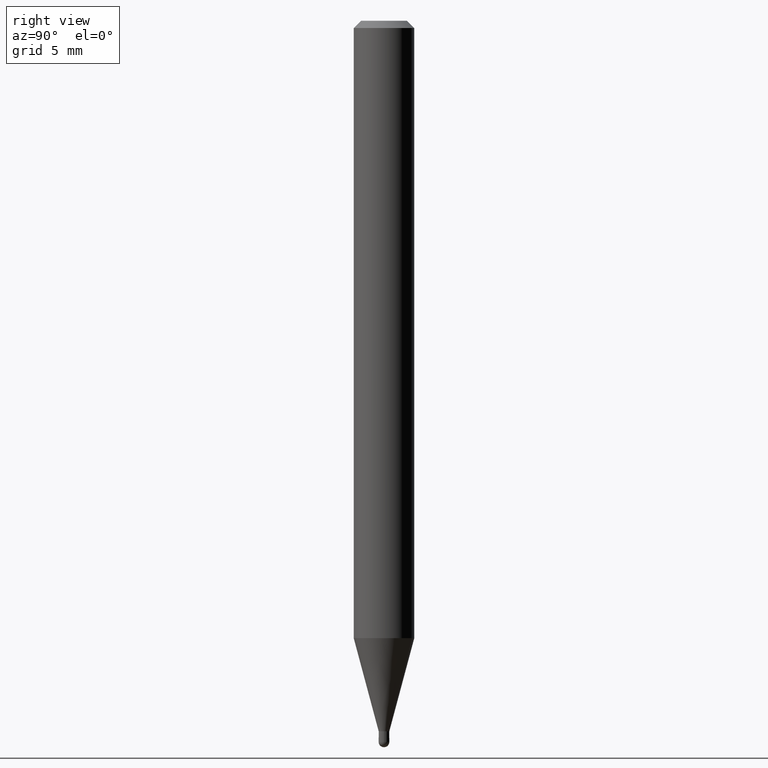
[diagram: clean part render]
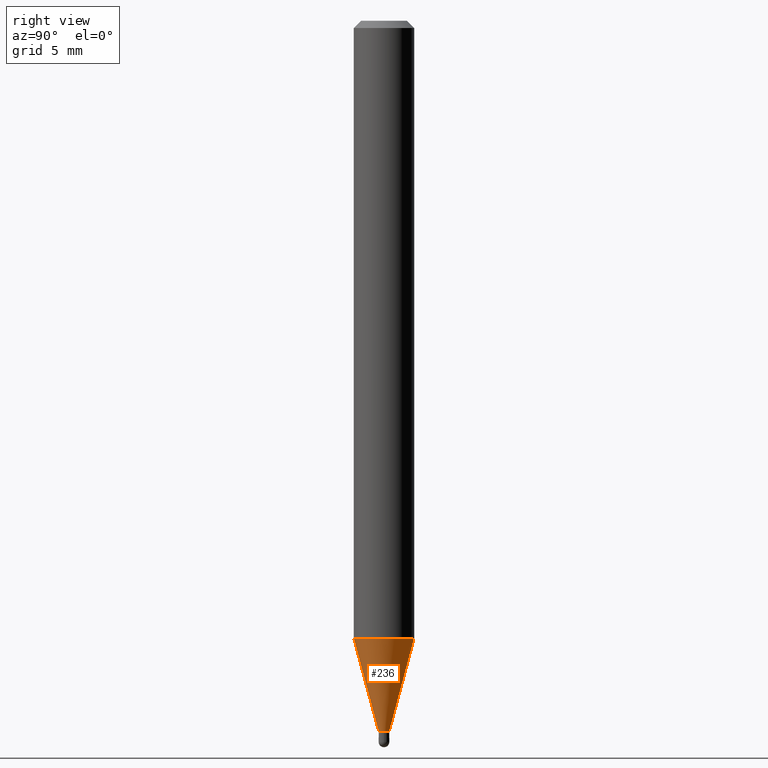
[diagram: same view with one face highlighted and labeled with its STEP entity id]
A machine part, right view. The second image highlights one B-rep face of the part: STEP entity #236.
In plain terms, the highlighted conical surface has half-angle 15 deg.
Its self-contained STEP definition (entity closure, byte-faithful):
#21 = ORIENTED_EDGE ( 'NONE', *, *, #350, .F. ) ;
#24 = VECTOR ( 'NONE', #484, 39.37007874015748854 ) ;
#27 = VERTEX_POINT ( 'NONE', #206 ) ;
#46 = CIRCLE ( 'NONE', #429, 0.06250000000000000000 ) ;
#57 = ORIENTED_EDGE ( 'NONE', *, *, #72, .T. ) ;
#63 = DIRECTION ( 'NONE',  ( -2.445455207626158790E-29, 3.491500812753583960E-15, 1.000000000000000000 ) ) ;
#65 = ORIENTED_EDGE ( 'NONE', *, *, #163, .T. ) ;
#72 = EDGE_CURVE ( 'NONE', #197, #27, #248, .T. ) ;
#74 = CARTESIAN_POINT ( 'NONE',  ( 3.587482789587576279E-29, -5.122031692309510028E-15, -1.467000000000000526 ) ) ;
#131 = VERTEX_POINT ( 'NONE', #500 ) ;
#139 = CONICAL_SURFACE ( 'NONE', #502, 0.01099999999999992477, 0.2617993877991575125 ) ;
#140 = DIRECTION ( 'NONE',  ( -6.982962677686265922E-15, -1.000000000000000000, 0.000000000000000000 ) ) ;
#163 = EDGE_CURVE ( 'NONE', #131, #197, #347, .T. ) ;
#197 = VERTEX_POINT ( 'NONE', #443 ) ;
#201 = CARTESIAN_POINT ( 'NONE',  ( 7.815970093364634209E-17, 0.01099999999999480213, -1.467000000000000526 ) ) ;
#206 = CARTESIAN_POINT ( 'NONE',  ( 4.440892098500935790E-16, 0.06249999999999553135, -1.274799383410209597 ) ) ;
#229 = DIRECTION ( 'NONE',  ( -6.982962677686265922E-15, -1.000000000000000000, 0.000000000000000000 ) ) ;
#236 = ADVANCED_FACE ( 'NONE', ( #430 ), #139, .T. ) ;
#240 = CARTESIAN_POINT ( 'NONE',  ( 3.587482789587576279E-29, -5.122031692309510028E-15, -1.467000000000000526 ) ) ;
#248 = LINE ( 'NONE', #201, #420 ) ;
#254 = AXIS2_PLACEMENT_3D ( 'NONE', #74, #472, #140 ) ;
#267 = CARTESIAN_POINT ( 'NONE',  ( -7.681258945451251950E-17, -0.01100000000000504567, -1.467000000000000526 ) ) ;
#280 = CARTESIAN_POINT ( 'NONE',  ( 3.117464790839112548E-29, -4.450963083274512992E-15, -1.274799383410209153 ) ) ;
#282 = CARTESIAN_POINT ( 'NONE',  ( -4.364351673553605094E-16, -0.06250000000000444089, -1.274799383410208931 ) ) ;
#298 = EDGE_CURVE ( 'NONE', #131, #309, #386, .T. ) ;
#302 = ORIENTED_EDGE ( 'NONE', *, *, #298, .F. ) ;
#309 = VERTEX_POINT ( 'NONE', #282 ) ;
#347 = CIRCLE ( 'NONE', #254, 0.01099999999999992477 ) ;
#350 = EDGE_CURVE ( 'NONE', #309, #27, #46, .T. ) ;
#371 = DIRECTION ( 'NONE',  ( -6.982962677686265922E-15, -1.000000000000000000, 4.370956789862821150E-15 ) ) ;
#386 = LINE ( 'NONE', #267, #24 ) ;
#420 = VECTOR ( 'NONE', #508, 39.37007874015748854 ) ;
#429 = AXIS2_PLACEMENT_3D ( 'NONE', #280, #444, #371 ) ;
#430 = FACE_OUTER_BOUND ( 'NONE', #435, .T. ) ;
#435 = EDGE_LOOP ( 'NONE', ( #65, #57, #21, #302 ) ) ;
#443 = CARTESIAN_POINT ( 'NONE',  ( 2.611244553918701824E-16, 0.01099999999999480213, -1.467000000000000526 ) ) ;
#444 = DIRECTION ( 'NONE',  ( -2.445455207626158790E-29, 3.491500812753583960E-15, 1.000000000000000000 ) ) ;
#472 = DIRECTION ( 'NONE',  ( -2.445455207626158790E-29, 3.491500812753583960E-15, 1.000000000000000000 ) ) ;
#484 = DIRECTION ( 'NONE',  ( -1.807323732225379049E-15, -0.2588190451025252359, 0.9659258262890670910 ) ) ;
#500 = CARTESIAN_POINT ( 'NONE',  ( -7.681258945451251950E-17, -0.01100000000000504567, -1.467000000000000526 ) ) ;
#502 = AXIS2_PLACEMENT_3D ( 'NONE', #240, #63, #229 ) ;
#508 = DIRECTION ( 'NONE',  ( 1.839019923739649619E-15, 0.2588190451025318972, 0.9659258262890650926 ) ) ;